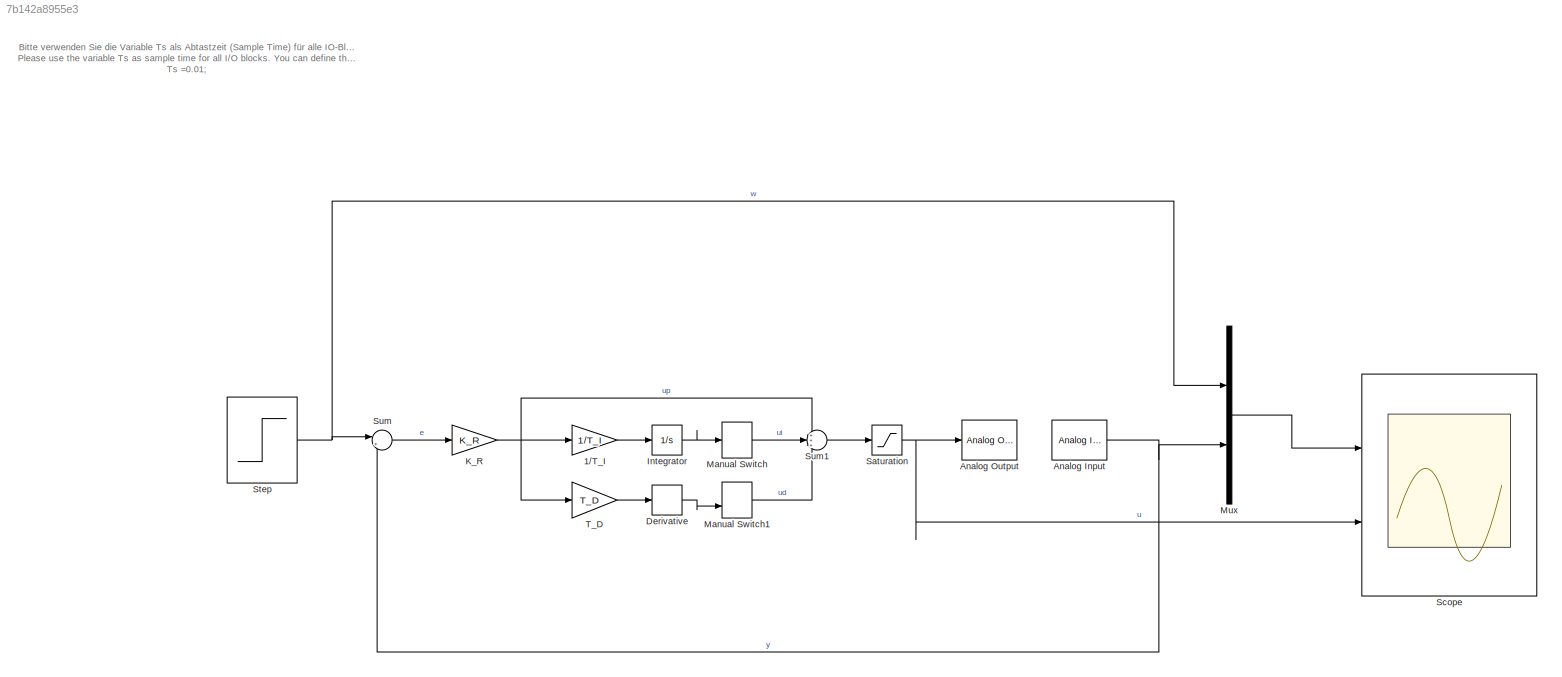
MODEL slx_7b142a8955e3
KIND model
CONFIG AbsTol = auto
CONFIG EnableMultiTasking = on
CONFIG FixedStep = auto
CONFIG MaxStep = auto
CONFIG MinStep = auto
CONFIG RelTol = 1e-3
CONFIG SampleTimeConstraint = Unconstrained
CONFIG SolverName = ode45
CONFIG StartTime = 0.0
CONFIG StopTime = 10.0
BLOCK [Gain] 1//T_I
  Gain = 1/T_I
BLOCK [Reference] Analog Input  REF=sldrtlib/Analog Input
  AttributesFormatString = National Instruments\nPCIe-6321 [auto]
  Ports = [0, 1]
  SourceBlock = sldrtlib/Analog Input
  SourceProductBaseCode = WT
  SourceType = Simulink Desktop Real-Time Analog Input
BLOCK [Reference] Analog Output  REF=sldrtlib/Analog Output
  AttributesFormatString = National Instruments\nPCIe-6321 [auto]
  Ports = [1]
  SourceBlock = sldrtlib/Analog Output
  SourceProductBaseCode = WT
  SourceType = Simulink Desktop Real-Time Analog Output
BLOCK [Derivative] Derivative
BLOCK [Integrator] Integrator
  Ports = [1, 1]
BLOCK [Gain] K_R
  Gain = K_R
BLOCK [ManualSwitch] Manual Switch
BLOCK [ManualSwitch] Manual Switch1
  CurrentSetting = 0
BLOCK [Mux] Mux
  DisplayOption = bar
  Inputs = 2
  Ports = [2, 1]
BLOCK [Saturate] Saturation
  LowerLimit = -10
  UpperLimit = 10
BLOCK [Scope] Scope
  Floating = off
  NumInputPorts = 2
  Ports = [2]
  ScopeSpecificationString = Simulink.scopes.TimeScopeBlockCfg('CurrentConfiguration', extmgr.ConfigurationSet(extmgr.Configuration('Core','General UI',true),extmgr.Configuration('Core','Source UI',true),extmgr.Configuration('Sources','WiredSimulink',true,'DataLoggingVariableName','MD','DataLogging',true,'DataLoggingSaveFormat','StructureWithTime','SampleTime','0.01'),extmgr.Configuration('Visuals','Time Domain',true,'Seriali...<+2156ch>
BLOCK [Step] Step
  SampleTime = 0
BLOCK [Sum] Sum
  Inputs = |+-
  Ports = [2, 1]
BLOCK [Sum] Sum1
  Inputs = +++
  Ports = [3, 1]
BLOCK [Gain] T_D
  Gain = T_D
ANNOTATION (root): Bitte verwenden Sie die Variable Ts als Abtastzeit (Sample Time) für alle IO-Blöcke. Definieren Sie in Matlab-Workspace die geeigenete Abtastzeit mit den folgenden Befehl: Please use the variable Ts as sample time for all I/O blocks. You can define the sample time executing the following comand in Matlab workspace: Ts =0.01;
LINE 1//T_I:1 -> Integrator:1
NET Analog Input:1 -> Mux:2, Sum:2
LINE Derivative:1 -> Manual Switch1:2
LINE Integrator:1 -> Manual Switch:1
NET K_R:1 -> 1//T_I:1, Sum1:1, T_D:1
LINE Manual Switch1:1 -> Sum1:3
LINE Manual Switch:1 -> Sum1:2
LINE Mux:1 -> Scope:1
NET Saturation:1 -> Analog Output:1, Scope:2
NET Step:1 -> Mux:1, Sum:1
LINE Sum1:1 -> Saturation:1
LINE Sum:1 -> K_R:1
LINE T_D:1 -> Derivative:1
note: NET lines group one-source signal fan-out (src -> all destinations, sorted); 1:1 wires keep LINE
